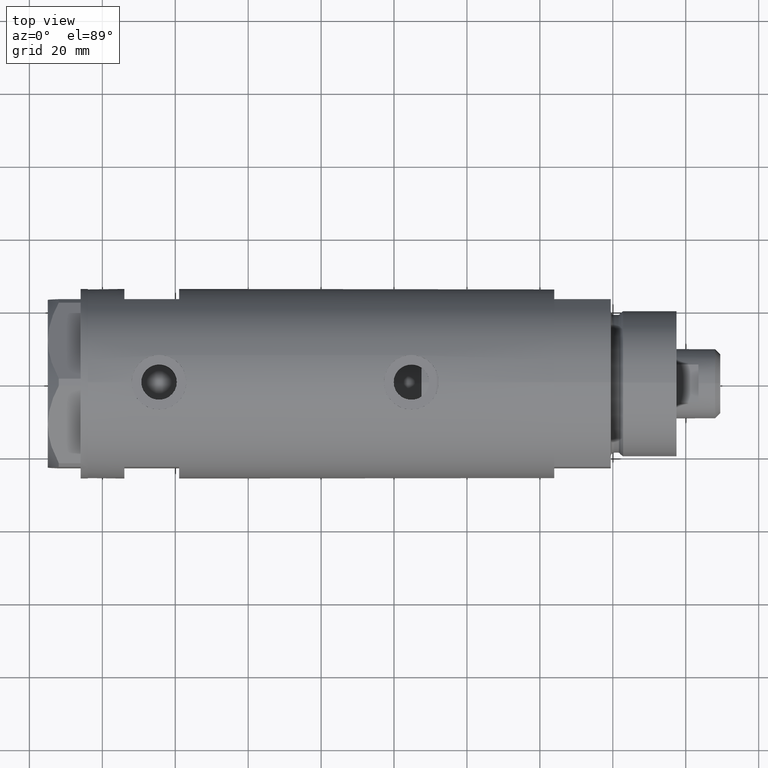
[diagram: clean part render]
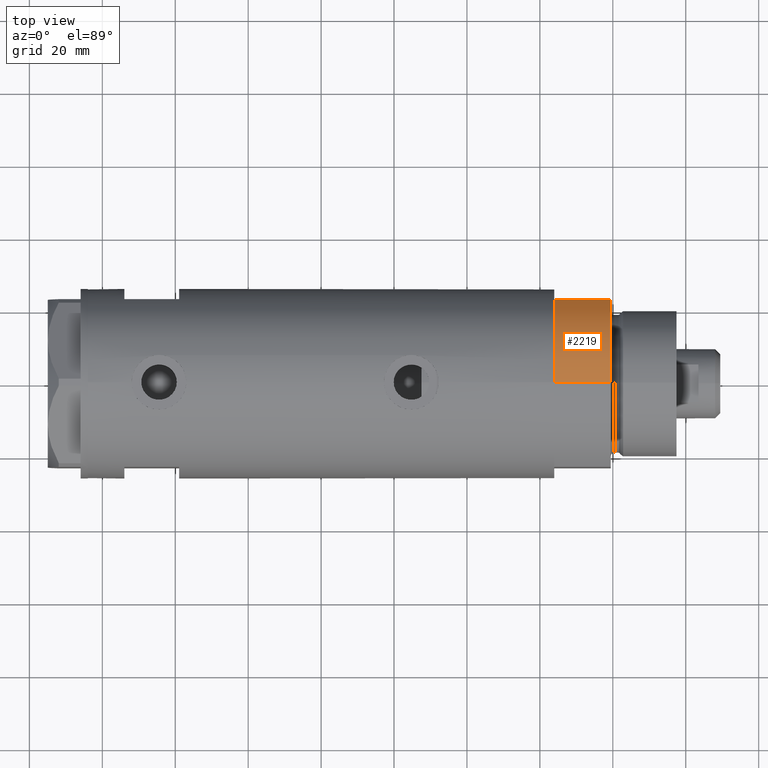
[diagram: same view with one face highlighted and labeled with its STEP entity id]
A machine part, top view. The second image highlights one B-rep face of the part: STEP entity #2219.
In plain terms, the highlighted cylindrical surface (partial cylindrical patch) has radius 26 mm, axis along (-1, -0, 0).
Its self-contained STEP definition (entity closure, byte-faithful):
#3 = ORIENTED_EDGE ( 'NONE', *, *, #2386, .F. ) ;
#191 = VERTEX_POINT ( 'NONE', #2465 ) ;
#283 = DIRECTION ( 'NONE',  ( -0.000000000000000000, -0.000000000000000000, -1.000000000000000000 ) ) ;
#334 = DIRECTION ( 'NONE',  ( 1.000000000000000000, 0.000000000000000000, 0.000000000000000000 ) ) ;
#416 = VECTOR ( 'NONE', #3675, 1000.000000000000000 ) ;
#466 = EDGE_CURVE ( 'NONE', #558, #191, #625, .T. ) ;
#550 = CIRCLE ( 'NONE', #4026, 26.00000000000000355 ) ;
#558 = VERTEX_POINT ( 'NONE', #2562 ) ;
#625 = LINE ( 'NONE', #3227, #416 ) ;
#641 = DIRECTION ( 'NONE',  ( 0.000000000000000000, 0.000000000000000000, 1.000000000000000000 ) ) ;
#716 = ORIENTED_EDGE ( 'NONE', *, *, #1302, .F. ) ;
#785 = FACE_OUTER_BOUND ( 'NONE', #1171, .T. ) ;
#893 = AXIS2_PLACEMENT_3D ( 'NONE', #1011, #641, #334 ) ;
#1011 = CARTESIAN_POINT ( 'NONE',  ( 0.000000000000000000, 0.000000000000000000, 0.000000000000000000 ) ) ;
#1171 = EDGE_LOOP ( 'NONE', ( #716, #3, #1737, #2354 ) ) ;
#1251 = CARTESIAN_POINT ( 'NONE',  ( -26.00000000000000355, 0.000000000000000000, 0.000000000000000000 ) ) ;
#1269 = EDGE_CURVE ( 'NONE', #558, #4745, #4837, .T. ) ;
#1302 = EDGE_CURVE ( 'NONE', #4235, #4745, #3345, .T. ) ;
#1459 = DIRECTION ( 'NONE',  ( -0.000000000000000000, -0.000000000000000000, -1.000000000000000000 ) ) ;
#1737 = ORIENTED_EDGE ( 'NONE', *, *, #466, .F. ) ;
#2219 = ADVANCED_FACE ( 'NONE', ( #785 ), #2294, .T. ) ;
#2274 = CARTESIAN_POINT ( 'NONE',  ( -26.00000000000000355, 0.000000000000000000, 15.50000000000000000 ) ) ;
#2294 = CYLINDRICAL_SURFACE ( 'NONE', #4530, 26.00000000000000355 ) ;
#2354 = ORIENTED_EDGE ( 'NONE', *, *, #1269, .T. ) ;
#2386 = EDGE_CURVE ( 'NONE', #191, #4235, #550, .T. ) ;
#2465 = CARTESIAN_POINT ( 'NONE',  ( -12.12435565298214613, 23.00000000000000355, 15.50000000000000000 ) ) ;
#2562 = CARTESIAN_POINT ( 'NONE',  ( -12.12435565298215145, 23.00000000000000355, 0.000000000000000000 ) ) ;
#2968 = DIRECTION ( 'NONE',  ( -1.000000000000000000, 0.000000000000000000, 0.000000000000000000 ) ) ;
#3227 = CARTESIAN_POINT ( 'NONE',  ( -12.12435565298215145, 23.00000000000000355, 0.000000000000000000 ) ) ;
#3345 = LINE ( 'NONE', #3663, #3576 ) ;
#3576 = VECTOR ( 'NONE', #283, 1000.000000000000000 ) ;
#3663 = CARTESIAN_POINT ( 'NONE',  ( -26.00000000000000355, 0.000000000000000000, 15.50000000000000000 ) ) ;
#3675 = DIRECTION ( 'NONE',  ( -0.000000000000000000, -0.000000000000000000, 1.000000000000000000 ) ) ;
#3801 = CARTESIAN_POINT ( 'NONE',  ( 0.000000000000000000, 0.000000000000000000, 15.50000000000000000 ) ) ;
#4026 = AXIS2_PLACEMENT_3D ( 'NONE', #4660, #4266, #4606 ) ;
#4235 = VERTEX_POINT ( 'NONE', #2274 ) ;
#4266 = DIRECTION ( 'NONE',  ( 0.000000000000000000, 0.000000000000000000, 1.000000000000000000 ) ) ;
#4530 = AXIS2_PLACEMENT_3D ( 'NONE', #3801, #1459, #2968 ) ;
#4606 = DIRECTION ( 'NONE',  ( 1.000000000000000000, 0.000000000000000000, 0.000000000000000000 ) ) ;
#4660 = CARTESIAN_POINT ( 'NONE',  ( 0.000000000000000000, 0.000000000000000000, 15.50000000000000000 ) ) ;
#4745 = VERTEX_POINT ( 'NONE', #1251 ) ;
#4837 = CIRCLE ( 'NONE', #893, 26.00000000000000355 ) ;